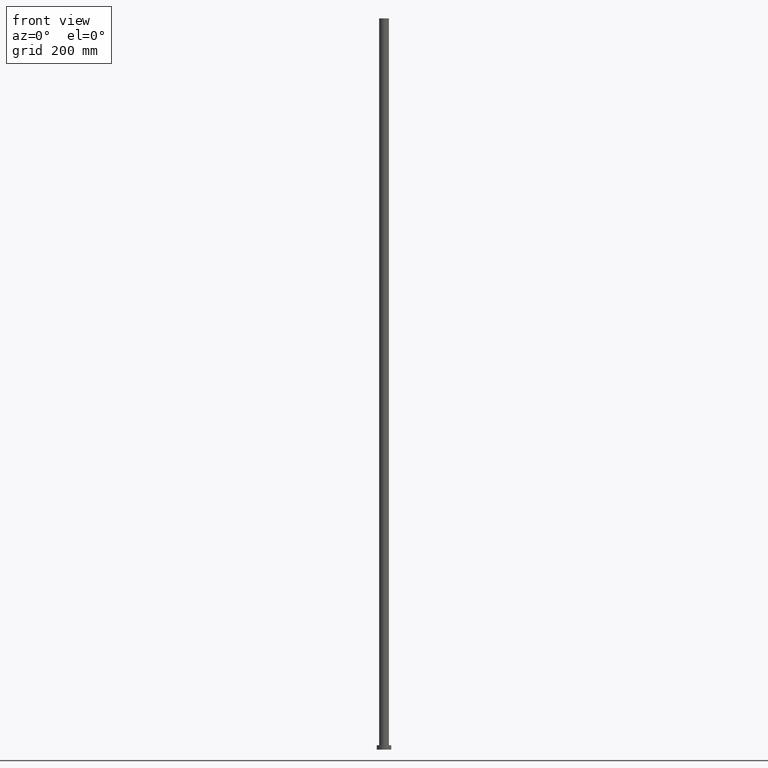
[diagram: clean part render]
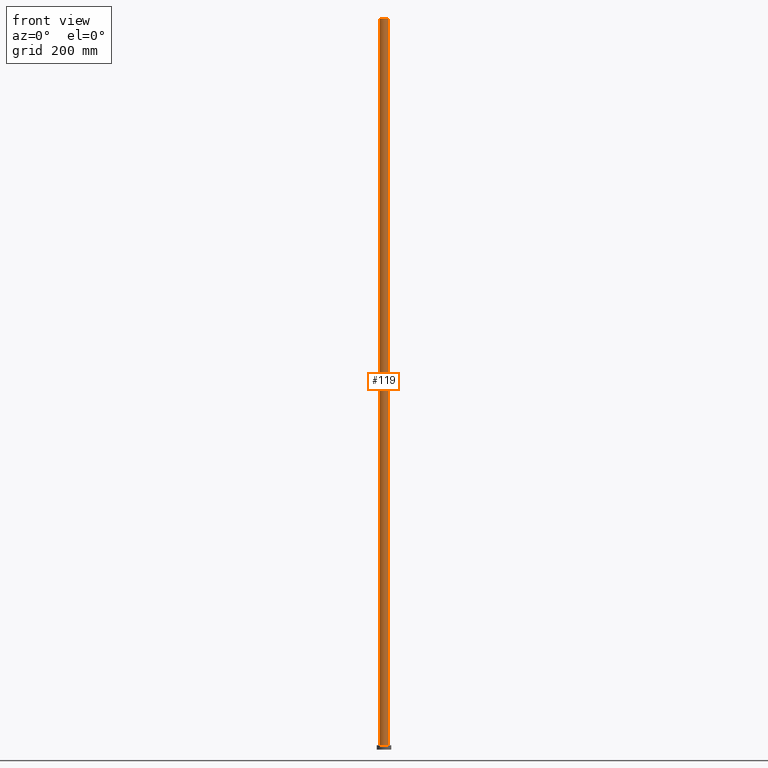
[diagram: same view with one face highlighted and labeled with its STEP entity id]
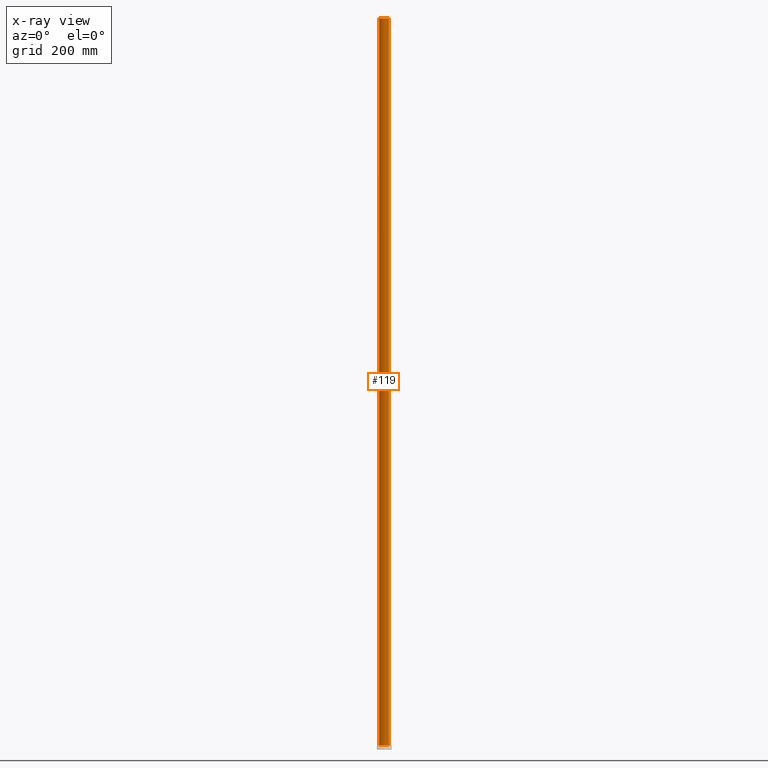
[diagram: x-ray of the same camera — body ghosted, the highlighted face saturated]
A machine part, front view. The second image highlights one B-rep face of the part: STEP entity #119.
The next image is the same camera in x-ray: the body ghosted, the highlighted face saturated — about 0% of this face is hidden behind the body in this view.
In plain terms, the highlighted cylindrical surface (edge-blend (fillet) strip) has radius 8 mm, axis along (-0, -0, -1).
Its self-contained STEP definition (entity closure, byte-faithful):
#1 = CARTESIAN_POINT ( 'NONE',  ( -8.000000000000000000, 0.000000000000000000, 1200.000000000000000 ) ) ;
#2 = EDGE_LOOP ( 'NONE', ( #215, #232, #54, #81 ) ) ;
#7 = DIRECTION ( 'NONE',  ( 1.000000000000000000, 0.000000000000000000, 0.000000000000000000 ) ) ;
#9 = CYLINDRICAL_SURFACE ( 'NONE', #239, 8.000000000000000000 ) ;
#27 = EDGE_CURVE ( 'NONE', #65, #172, #160, .T. ) ;
#28 = DIRECTION ( 'NONE',  ( 0.000000000000000000, 0.000000000000000000, 1.000000000000000000 ) ) ;
#36 = LINE ( 'NONE', #110, #252 ) ;
#37 = DIRECTION ( 'NONE',  ( 1.000000000000000000, 0.000000000000000000, 0.000000000000000000 ) ) ;
#43 = VERTEX_POINT ( 'NONE', #185 ) ;
#54 = ORIENTED_EDGE ( 'NONE', *, *, #216, .T. ) ;
#64 = EDGE_CURVE ( 'NONE', #43, #172, #36, .T. ) ;
#65 = VERTEX_POINT ( 'NONE', #208 ) ;
#66 = CIRCLE ( 'NONE', #237, 8.000000000000000000 ) ;
#73 = DIRECTION ( 'NONE',  ( -1.000000000000000000, 0.000000000000000000, 0.000000000000000000 ) ) ;
#80 = LINE ( 'NONE', #1, #196 ) ;
#81 = ORIENTED_EDGE ( 'NONE', *, *, #27, .T. ) ;
#83 = DIRECTION ( 'NONE',  ( -0.000000000000000000, -0.000000000000000000, -1.000000000000000000 ) ) ;
#104 = EDGE_CURVE ( 'NONE', #117, #43, #66, .T. ) ;
#110 = CARTESIAN_POINT ( 'NONE',  ( 8.000000000000000000, 9.797174393178825657E-16, 1200.000000000000000 ) ) ;
#117 = VERTEX_POINT ( 'NONE', #129 ) ;
#119 = ADVANCED_FACE ( 'NONE', ( #163 ), #9, .T. ) ;
#127 = DIRECTION ( 'NONE',  ( -0.000000000000000000, -0.000000000000000000, -1.000000000000000000 ) ) ;
#129 = CARTESIAN_POINT ( 'NONE',  ( -8.000000000000000000, 0.000000000000000000, 1200.000000000000000 ) ) ;
#132 = CARTESIAN_POINT ( 'NONE',  ( 0.000000000000000000, 0.000000000000000000, 1200.000000000000000 ) ) ;
#160 = CIRCLE ( 'NONE', #182, 8.000000000000000000 ) ;
#163 = FACE_OUTER_BOUND ( 'NONE', #2, .T. ) ;
#172 = VERTEX_POINT ( 'NONE', #250 ) ;
#182 = AXIS2_PLACEMENT_3D ( 'NONE', #244, #28, #7 ) ;
#185 = CARTESIAN_POINT ( 'NONE',  ( 8.000000000000000000, 9.797174393178825657E-16, 1200.000000000000000 ) ) ;
#187 = DIRECTION ( 'NONE',  ( 0.000000000000000000, 0.000000000000000000, 1.000000000000000000 ) ) ;
#196 = VECTOR ( 'NONE', #83, 1000.000000000000000 ) ;
#208 = CARTESIAN_POINT ( 'NONE',  ( -8.000000000000000000, 0.000000000000000000, 7.000000000000000000 ) ) ;
#215 = ORIENTED_EDGE ( 'NONE', *, *, #64, .F. ) ;
#216 = EDGE_CURVE ( 'NONE', #117, #65, #80, .T. ) ;
#232 = ORIENTED_EDGE ( 'NONE', *, *, #104, .F. ) ;
#233 = DIRECTION ( 'NONE',  ( -0.000000000000000000, -0.000000000000000000, -1.000000000000000000 ) ) ;
#237 = AXIS2_PLACEMENT_3D ( 'NONE', #251, #187, #37 ) ;
#239 = AXIS2_PLACEMENT_3D ( 'NONE', #132, #233, #73 ) ;
#244 = CARTESIAN_POINT ( 'NONE',  ( 0.000000000000000000, 0.000000000000000000, 7.000000000000000000 ) ) ;
#250 = CARTESIAN_POINT ( 'NONE',  ( 8.000000000000000000, 9.797174393178825657E-16, 7.000000000000000000 ) ) ;
#251 = CARTESIAN_POINT ( 'NONE',  ( 0.000000000000000000, 0.000000000000000000, 1200.000000000000000 ) ) ;
#252 = VECTOR ( 'NONE', #127, 1000.000000000000000 ) ;